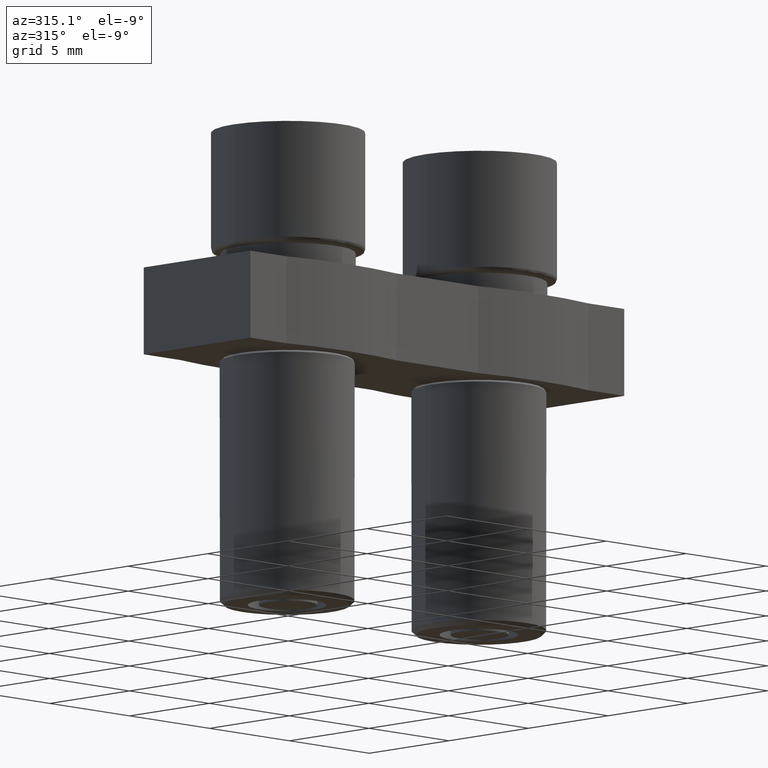
[diagram: clean part render]
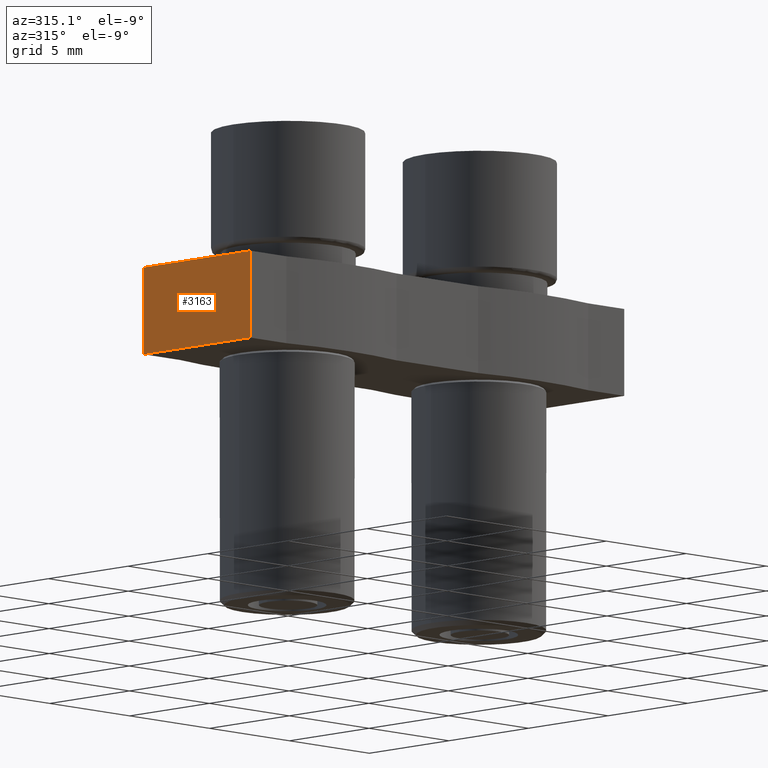
[diagram: same view with one face highlighted and labeled with its STEP entity id]
A machine part, auxiliary view. The second image highlights one B-rep face of the part: STEP entity #3163.
In plain terms, the highlighted planar face has unit normal (1, 0, -0).
Its self-contained STEP definition (entity closure, byte-faithful):
#523 = DIRECTION ( 'NONE',  ( -2.009125974575783600E-016, 1.000000000000000000, 0.0000000000000000000 ) ) ;
#533 = CARTESIAN_POINT ( 'NONE',  ( -5.699999999999999300, 7.221084286606898500, -4.800000000000001600 ) ) ;
#546 = LINE ( 'NONE', #533, #2656 ) ;
#1152 = DIRECTION ( 'NONE',  ( 1.000000000000000000, 2.009125974575783600E-016, -0.0000000000000000000 ) ) ;
#1169 = PLANE ( 'NONE',  #2750 ) ;
#1173 = DIRECTION ( 'NONE',  ( -2.009125974575783600E-016, 1.000000000000000000, 0.0000000000000000000 ) ) ;
#1180 = FACE_OUTER_BOUND ( 'NONE', #1808, .T. ) ;
#1198 = CARTESIAN_POINT ( 'NONE',  ( -5.699999999999999300, 7.221084286606898500, -4.800000000000001600 ) ) ;
#1499 = LINE ( 'NONE', #1519, #2554 ) ;
#1500 = DIRECTION ( 'NONE',  ( 0.0000000000000000000, 0.0000000000000000000, -1.000000000000000000 ) ) ;
#1506 = CARTESIAN_POINT ( 'NONE',  ( -5.699999999999998400, 3.350000000000084500, -4.800000000000001600 ) ) ;
#1519 = CARTESIAN_POINT ( 'NONE',  ( -5.699999999999996600, -3.349999999999916600, -0.9000000000000014700 ) ) ;
#1529 = LINE ( 'NONE', #1506, #2593 ) ;
#1531 = DIRECTION ( 'NONE',  ( 0.0000000000000000000, 0.0000000000000000000, -1.000000000000000000 ) ) ;
#1708 = VERTEX_POINT ( 'NONE', #2479 ) ;
#1726 = VERTEX_POINT ( 'NONE', #2448 ) ;
#1731 = VERTEX_POINT ( 'NONE', #2483 ) ;
#1733 = VERTEX_POINT ( 'NONE', #2454 ) ;
#1808 = EDGE_LOOP ( 'NONE', ( #2132, #2178, #2134, #2136 ) ) ;
#2132 = ORIENTED_EDGE ( 'NONE', *, *, #2996, .T. ) ;
#2134 = ORIENTED_EDGE ( 'NONE', *, *, #3001, .F. ) ;
#2136 = ORIENTED_EDGE ( 'NONE', *, *, #2984, .F. ) ;
#2178 = ORIENTED_EDGE ( 'NONE', *, *, #3031, .F. ) ;
#2448 = CARTESIAN_POINT ( 'NONE',  ( -5.700000000000000200, 3.350000000000084500, -0.9000000000000014700 ) ) ;
#2454 = CARTESIAN_POINT ( 'NONE',  ( -5.699999999999996600, 3.350000000000084500, -4.800000000000001600 ) ) ;
#2479 = CARTESIAN_POINT ( 'NONE',  ( -5.699999999999996600, -3.349999999999916600, -0.9000000000000014700 ) ) ;
#2483 = CARTESIAN_POINT ( 'NONE',  ( -5.699999999999996600, -3.349999999999917900, -4.800000000000001600 ) ) ;
#2497 = LINE ( 'NONE', #2524, #2556 ) ;
#2524 = CARTESIAN_POINT ( 'NONE',  ( -5.699999999999996600, -3.349999999999909900, -0.9000000000000014700 ) ) ;
#2525 = DIRECTION ( 'NONE',  ( 2.009125974575783600E-016, -1.000000000000000000, 0.0000000000000000000 ) ) ;
#2554 = VECTOR ( 'NONE', #1500, 1000.000000000000000 ) ;
#2556 = VECTOR ( 'NONE', #2525, 1000.000000000000000 ) ;
#2593 = VECTOR ( 'NONE', #1531, 1000.000000000000000 ) ;
#2656 = VECTOR ( 'NONE', #523, 1000.000000000000000 ) ;
#2750 = AXIS2_PLACEMENT_3D ( 'NONE', #1198, #1152, #1173 ) ;
#2984 = EDGE_CURVE ( 'NONE', #1726, #1708, #2497, .T. ) ;
#2996 = EDGE_CURVE ( 'NONE', #1726, #1733, #1529, .T. ) ;
#3001 = EDGE_CURVE ( 'NONE', #1708, #1731, #1499, .T. ) ;
#3031 = EDGE_CURVE ( 'NONE', #1731, #1733, #546, .T. ) ;
#3163 = ADVANCED_FACE ( 'NONE', ( #1180 ), #1169, .F. ) ;